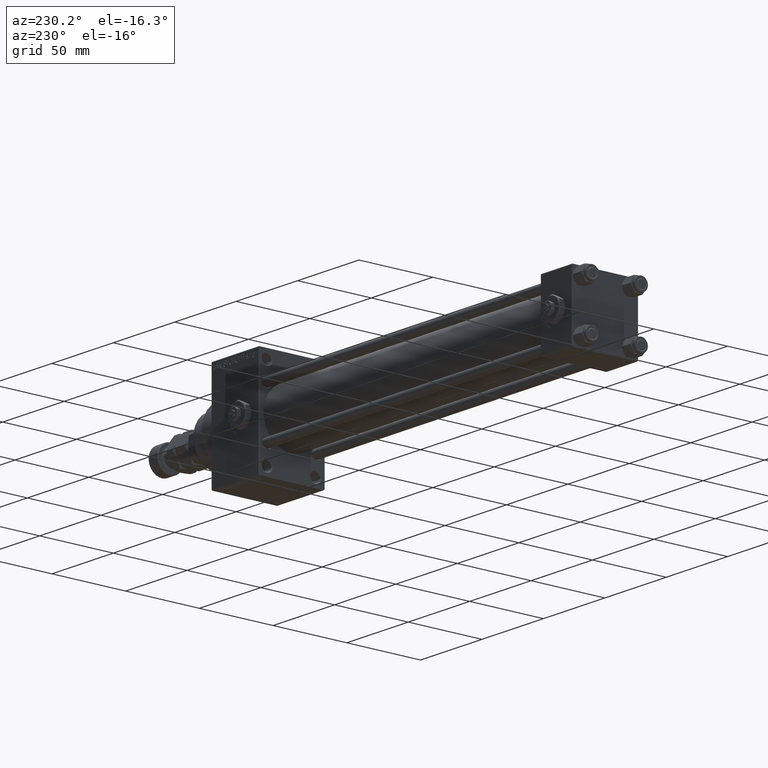
[diagram: clean part render]
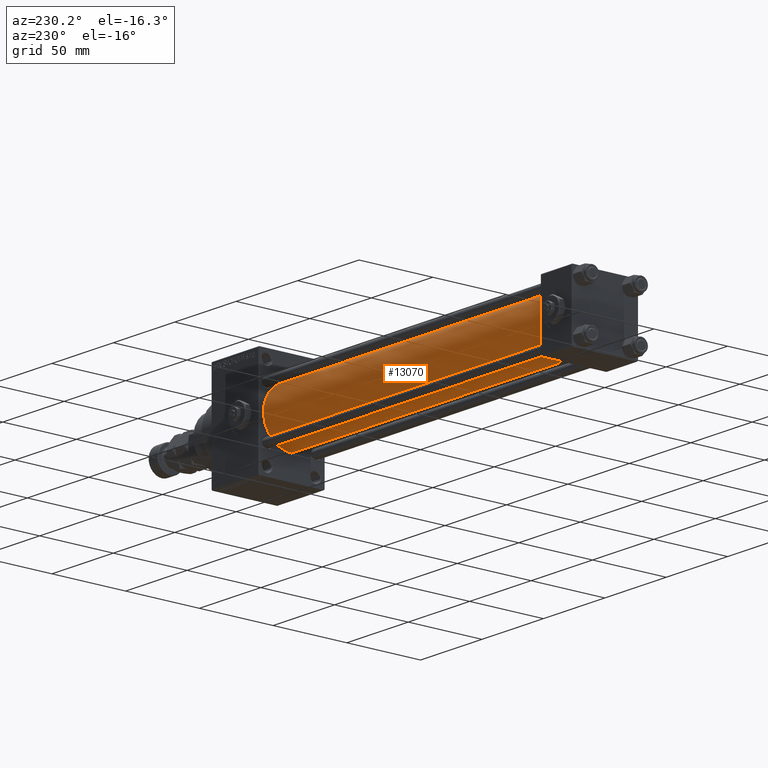
[diagram: same view with one face highlighted and labeled with its STEP entity id]
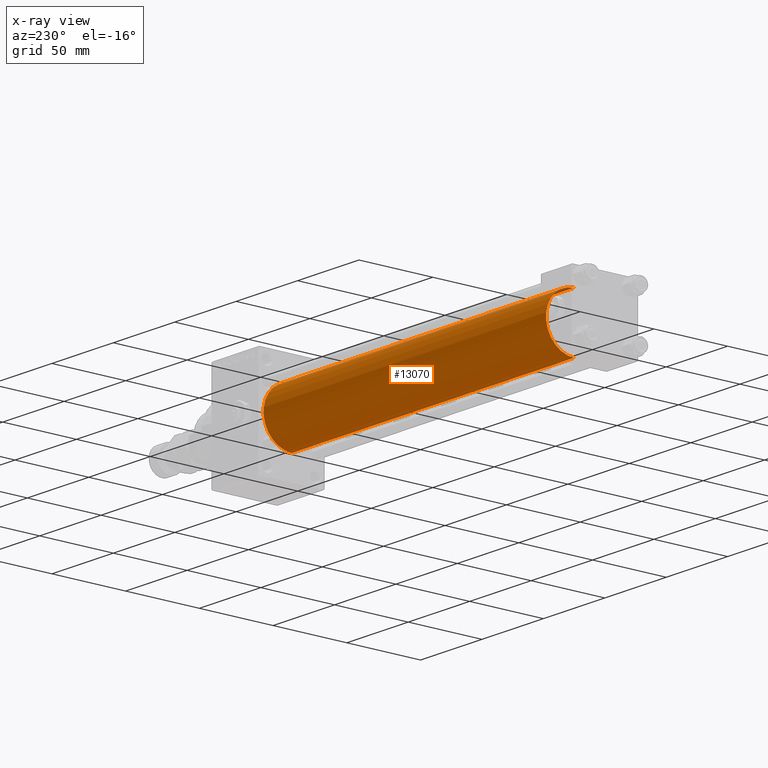
[diagram: x-ray of the same camera — body ghosted, the highlighted face saturated]
A machine part, auxiliary view. The second image highlights one B-rep face of the part: STEP entity #13070.
The next image is the same camera in x-ray: the body ghosted, the highlighted face saturated — about 0% of this face is hidden behind the body in this view.
In plain terms, the highlighted cylindrical surface (edge-blend (fillet) strip) has radius 19 mm, axis along (-1, -0, -0).
Its self-contained STEP definition (entity closure, byte-faithful):
#62 = CARTESIAN_POINT ( 'NONE',  ( 255.0000000000000000, -2.752562955852396712E-16, -19.00000000000000000 ) ) ;
#84 = CARTESIAN_POINT ( 'NONE',  ( 255.0000000000000000, -2.602085213965210642E-15, 19.00000000000000000 ) ) ;
#329 = AXIS2_PLACEMENT_3D ( 'NONE', #39910, #20385, #28865 ) ;
#1398 = ORIENTED_EDGE ( 'NONE', *, *, #27848, .F. ) ;
#1602 = VERTEX_POINT ( 'NONE', #32385 ) ;
#4030 = CIRCLE ( 'NONE', #45050, 19.00000000000000000 ) ;
#5888 = VECTOR ( 'NONE', #11941, 1000.000000000000000 ) ;
#7255 = LINE ( 'NONE', #62, #30704 ) ;
#7680 = EDGE_CURVE ( 'NONE', #47721, #1602, #34850, .T. ) ;
#7746 = EDGE_CURVE ( 'NONE', #39397, #1602, #19826, .T. ) ;
#8564 = FACE_OUTER_BOUND ( 'NONE', #40384, .T. ) ;
#9094 = ORIENTED_EDGE ( 'NONE', *, *, #39564, .T. ) ;
#10140 = CARTESIAN_POINT ( 'NONE',  ( 255.0000000000000000, -2.602085213965210642E-15, 0.000000000000000000 ) ) ;
#11589 = DIRECTION ( 'NONE',  ( -1.000000000000000000, -0.000000000000000000, -0.000000000000000000 ) ) ;
#11941 = DIRECTION ( 'NONE',  ( -1.000000000000000000, -0.000000000000000000, -0.000000000000000000 ) ) ;
#12434 = AXIS2_PLACEMENT_3D ( 'NONE', #15543, #15306, #38698 ) ;
#13070 = ADVANCED_FACE ( 'NONE', ( #8564 ), #32458, .T. ) ;
#13206 = ORIENTED_EDGE ( 'NONE', *, *, #7680, .F. ) ;
#15306 = DIRECTION ( 'NONE',  ( 1.000000000000000000, -0.000000000000000000, 0.000000000000000000 ) ) ;
#15543 = CARTESIAN_POINT ( 'NONE',  ( 24.99999999999999289, -2.602085213965210642E-15, 0.000000000000000000 ) ) ;
#17299 = VERTEX_POINT ( 'NONE', #48224 ) ;
#18106 = DIRECTION ( 'NONE',  ( 0.000000000000000000, 0.000000000000000000, -1.000000000000000000 ) ) ;
#19826 = CIRCLE ( 'NONE', #12434, 19.00000000000000000 ) ;
#20385 = DIRECTION ( 'NONE',  ( -1.000000000000000000, -0.000000000000000000, -0.000000000000000000 ) ) ;
#25823 = DIRECTION ( 'NONE',  ( 1.000000000000000000, 0.000000000000000000, 0.000000000000000000 ) ) ;
#27848 = EDGE_CURVE ( 'NONE', #17299, #47721, #4030, .T. ) ;
#28865 = DIRECTION ( 'NONE',  ( 0.000000000000000000, 0.000000000000000000, 1.000000000000000000 ) ) ;
#30704 = VECTOR ( 'NONE', #11589, 1000.000000000000000 ) ;
#32385 = CARTESIAN_POINT ( 'NONE',  ( 24.99999999999999289, -2.602085213965210642E-15, 19.00000000000000000 ) ) ;
#32458 = CYLINDRICAL_SURFACE ( 'NONE', #329, 19.00000000000000000 ) ;
#34850 = LINE ( 'NONE', #43295, #5888 ) ;
#38698 = DIRECTION ( 'NONE',  ( 0.000000000000000000, 0.000000000000000000, 1.000000000000000000 ) ) ;
#39397 = VERTEX_POINT ( 'NONE', #44261 ) ;
#39564 = EDGE_CURVE ( 'NONE', #17299, #39397, #7255, .T. ) ;
#39910 = CARTESIAN_POINT ( 'NONE',  ( 255.0000000000000000, -2.602085213965210642E-15, 0.000000000000000000 ) ) ;
#40384 = EDGE_LOOP ( 'NONE', ( #1398, #9094, #46147, #13206 ) ) ;
#43295 = CARTESIAN_POINT ( 'NONE',  ( 255.0000000000000000, -2.602085213965210642E-15, 19.00000000000000000 ) ) ;
#44261 = CARTESIAN_POINT ( 'NONE',  ( 24.99999999999999289, -2.752562955852396712E-16, -19.00000000000000000 ) ) ;
#45050 = AXIS2_PLACEMENT_3D ( 'NONE', #10140, #25823, #18106 ) ;
#46147 = ORIENTED_EDGE ( 'NONE', *, *, #7746, .T. ) ;
#47721 = VERTEX_POINT ( 'NONE', #84 ) ;
#48224 = CARTESIAN_POINT ( 'NONE',  ( 255.0000000000000000, -2.752562955852396712E-16, -19.00000000000000000 ) ) ;